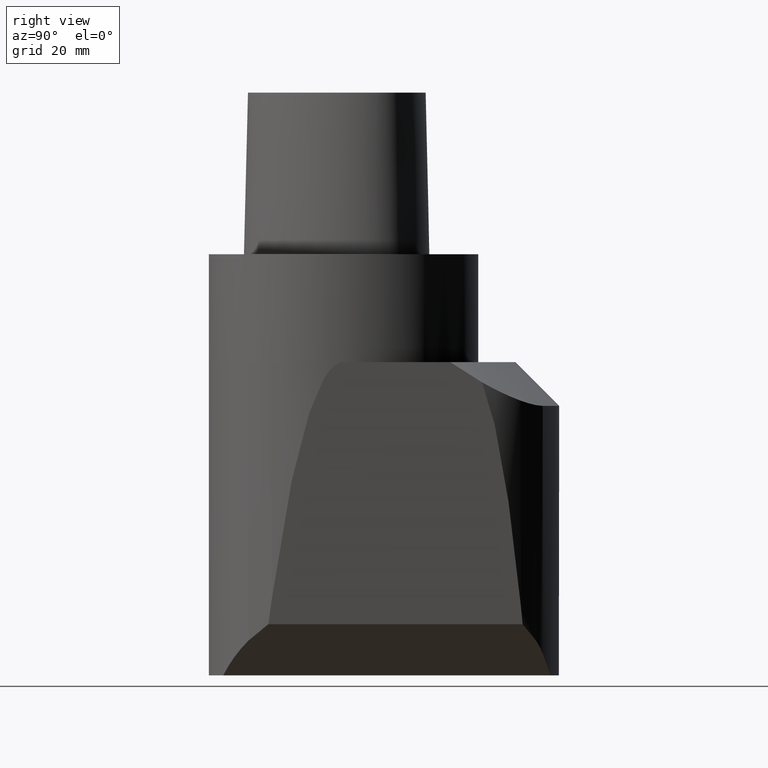
[diagram: clean part render]
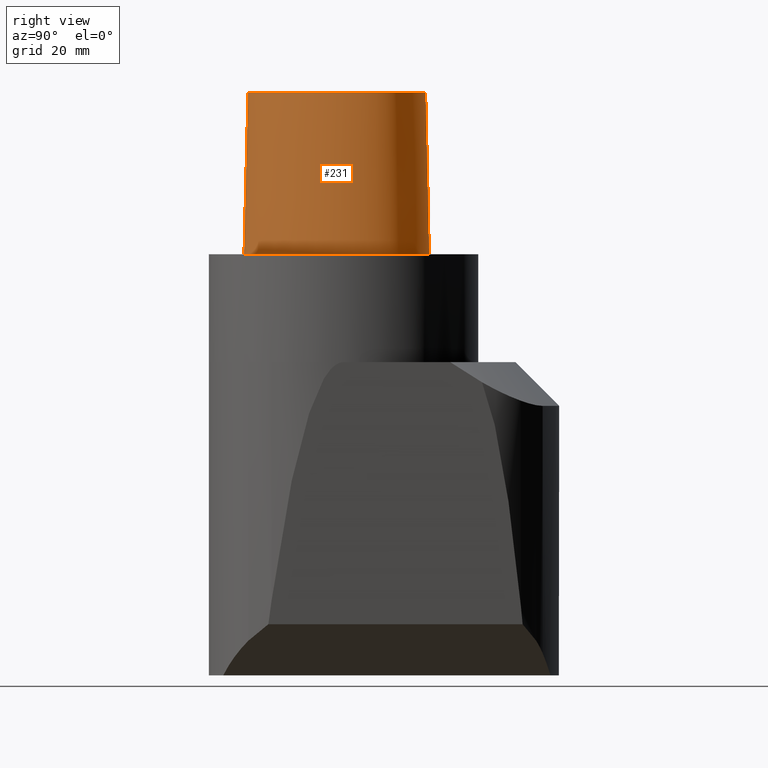
[diagram: same view with one face highlighted and labeled with its STEP entity id]
A machine part, right view. The second image highlights one B-rep face of the part: STEP entity #231.
In plain terms, the highlighted face is a freeform B-spline surface patch.
Its self-contained STEP definition (entity closure, byte-faithful):
#114=EDGE_CURVE('240[2]',#320,#320,#321,.T.);
#231=ADVANCED_FACE('240[2]',(#482),#483,.F.);
#262=EDGE_CURVE('240[2]',#518,#518,#519,.T.);
#270=EDGE_CURVE('240[2]',#518,#320,#530,.T.);
#320=VERTEX_POINT('',#580);
#321=B_SPLINE_CURVE_WITH_KNOTS('',3,(#581,#582,#583,#584,#585,#586,#587,#588,#589,#590,#591,#592,#593,#594,#595,#596,#597,#598,#599,#600,#601,#602,#603,#604,#605,#606,#607,#608,#609,#610,#611,#612,#613,#614,#615,#616,#617,#618,#619,#620,#621,#622,#623,#624,#625,#626,#627,#628,#629),.UNSPECIFIED.,.T.,.F.,(4,1,1,1,1,1,1,1,1,1,1,1,1,1,1,1,1,1,1,1,1,1,1,1,1,1,1,1,1,1,1,1,1,1,1,1,1,1,1,1,1,1,1,1,1,1,4),(0.0,0.023351915855444,0.046587266388789,0.069240176568065,0.091148511555983,0.1123498082883,0.132988344921176,0.153259056323784,0.173379606256739,0.193575406900779,0.21406817556902,0.235062876490599,0.256724107877353,0.279134072148509,0.302211911987387,0.325585720772129,0.348897942793447,0.372235827811492,0.395117449062017,0.417273776916591,0.438690480917031,0.459517607941485,0.479887726529216,0.499920279645309,0.520109124362118,0.540479544703226,0.561306546843113,0.582722343807168,0.604879209617679,0.627760890760907,0.651098683894914,0.674411064884055,0.697926557694984,0.721709534344695,0.743275604228345,0.764936939065916,0.785931598379216,0.806424124397203,0.826619873462382,0.846740294796301,0.867010839616641,0.887649545430403,0.908851158162203,0.930759261827623,0.953412277508376,0.976648149620789,1.0),.UNSPECIFIED.);
#482=FACE_OUTER_BOUND('',#1060,.T.);
#483=B_SPLINE_SURFACE_WITH_KNOTS('',3,3,((#1061,#1062,#1063,#1064),(#1065,#1066,#1067,#1068),(#1069,#1070,#1071,#1072),(#1073,#1074,#1075,#1076),(#1077,#1078,#1079,#1080),(#1081,#1082,#1083,#1084),(#1085,#1086,#1087,#1088),(#1089,#1090,#1091,#1092),(#1093,#1094,#1095,#1096),(#1097,#1098,#1099,#1100),(#1101,#1102,#1103,#1104),(#1105,#1106,#1107,#1108),(#1109,#1110,#1111,#1112),(#1113,#1114,#1115,#1116),(#1117,#1118,#1119,#1120),(#1121,#1122,#1123,#1124),(#1125,#1126,#1127,#1128),(#1129,#1130,#1131,#1132),(#1133,#1134,#1135,#1136),(#1137,#1138,#1139,#1140),(#1141,#1142,#1143,#1144),(#1145,#1146,#1147,#1148),(#1149,#1150,#1151,#1152),(#1153,#1154,#1155,#1156),(#1157,#1158,#1159,#1160),(#1161,#1162,#1163,#1164),(#1165,#1166,#1167,#1168),(#1169,#1170,#1171,#1172),(#1173,#1174,#1175,#1176),(#1177,#1178,#1179,#1180),(#1181,#1182,#1183,#1184),(#1185,#1186,#1187,#1188),(#1189,#1190,#1191,#1192),(#1193,#1194,#1195,#1196),(#1197,#1198,#1199,#1200),(#1201,#1202,#1203,#1204),(#1205,#1206,#1207,#1208),(#1209,#1210,#1211,#1212),(#1213,#1214,#1215,#1216),(#1217,#1218,#1219,#1220),(#1221,#1222,#1223,#1224),(#1225,#1226,#1227,#1228),(#1229,#1230,#1231,#1232),(#1233,#1234,#1235,#1236),(#1237,#1238,#1239,#1240),(#1241,#1242,#1243,#1244),(#1245,#1246,#1247,#1248),(#1249,#1250,#1251,#1252),(#1253,#1254,#1255,#1256),(#1257,#1258,#1259,#1260),(#1261,#1262,#1263,#1264),(#1265,#1266,#1267,#1268),(#1269,#1270,#1271,#1272),(#1273,#1274,#1275,#1276),(#1277,#1278,#1279,#1280),(#1281,#1282,#1283,#1284),(#1285,#1286,#1287,#1288),(#1289,#1290,#1291,#1292),(#1293,#1294,#1295,#1296),(#1297,#1298,#1299,#1300),(#1301,#1302,#1303,#1304),(#1305,#1306,#1307,#1308),(#1309,#1310,#1311,#1312),(#1313,#1314,#1315,#1316),(#1317,#1318,#1319,#1320),(#1321,#1322,#1323,#1324),(#1325,#1326,#1327,#1328),(#1329,#1330,#1331,#1332),(#1333,#1334,#1335,#1336),(#1337,#1338,#1339,#1340),(#1341,#1342,#1343,#1344),(#1345,#1346,#1347,#1348),(#1349,#1350,#1351,#1352),(#1353,#1354,#1355,#1356),(#1357,#1358,#1359,#1360),(#1361,#1362,#1363,#1364),(#1365,#1366,#1367,#1368),(#1369,#1370,#1371,#1372),(#1373,#1374,#1375,#1376),(#1377,#1378,#1379,#1380),(#1381,#1382,#1383,#1384),(#1385,#1386,#1387,#1388),(#1389,#1390,#1391,#1392),(#1393,#1394,#1395,#1396),(#1397,#1398,#1399,#1400),(#1401,#1402,#1403,#1404),(#1405,#1406,#1407,#1408),(#1409,#1410,#1411,#1412),(#1413,#1414,#1415,#1416),(#1417,#1418,#1419,#1420),(#1421,#1422,#1423,#1424),(#1425,#1426,#1427,#1428),(#1429,#1430,#1431,#1432),(#1433,#1434,#1435,#1436),(#1437,#1438,#1439,#1440),(#1441,#1442,#1443,#1444)),.UNSPECIFIED.,.T.,.F.,.F.,(4,2,2,2,2,2,2,2,2,2,2,2,2,2,2,2,2,2,2,2,2,2,2,2,2,2,2,2,2,2,2,2,2,2,2,2,2,2,2,2,2,2,2,2,2,2,2,4),(4,4),(0.0,0.023266238907101,0.04642321916497,0.069037428304488,0.090947532765319,0.112181511979892,0.132874081906891,0.153211623090307,0.173403899120381,0.193668982465133,0.214220857423359,0.235256169578881,0.256931182005521,0.279316100520023,0.302327812922285,0.325615908452607,0.348863915862354,0.37211588966546,0.394944167045003,0.417090524637617,0.438530318382332,0.459402579310312,0.479837360161492,0.499920279645309,0.520144802150986,0.540579089622822,0.561451608096301,0.58289068047617,0.605037731022285,0.627865851215146,0.651117829762372,0.674365843809947,0.697654002942623,0.720665464887439,0.743050887635834,0.764725116248188,0.7857605656535,0.806312370379442,0.826577482765943,0.846769695561797,0.867106984936976,0.887799904832214,0.90903349107026,0.930943318867528,0.953557807681498,0.97671479981417,0.999990517903696,1.0),(0.0,1.0),.UNSPECIFIED.);
#518=VERTEX_POINT('',#1510);
#519=B_SPLINE_CURVE_WITH_KNOTS('',3,(#1511,#1512,#1513,#1514,#1515,#1516,#1517,#1518,#1519,#1520,#1521,#1522,#1523,#1524,#1525,#1526,#1527,#1528,#1529,#1530,#1531,#1532,#1533,#1534,#1535,#1536,#1537,#1538,#1539,#1540,#1541,#1542,#1543,#1544,#1545,#1546,#1547,#1548,#1549,#1550,#1551,#1552,#1553,#1554,#1555,#1556,#1557,#1558,#1559,#1560,#1561,#1562,#1563,#1564,#1565,#1566,#1567,#1568,#1569,#1570,#1571,#1572,#1573,#1574,#1575,#1576,#1577,#1578,#1579,#1580,#1581,#1582,#1583,#1584,#1585,#1586,#1587,#1588,#1589,#1590,#1591,#1592,#1593,#1594,#1595,#1596,#1597,#1598,#1599,#1600,#1601,#1602,#1603,#1604,#1605,#1606),.UNSPECIFIED.,.T.,.F.,(4,2,2,2,2,2,2,2,2,2,2,2,2,2,2,2,2,2,2,2,2,2,2,2,2,2,2,2,2,2,2,2,2,2,2,2,2,2,2,2,2,2,2,2,2,2,2,4),(0.0,0.023266238907101,0.04642321916497,0.069037428304488,0.090947532765319,0.112181511979892,0.132874081906891,0.153211623090307,0.173403899120381,0.193668982465133,0.214220857423359,0.235256169578881,0.256931182005521,0.279316100520023,0.302327812922285,0.325615908452607,0.348863915862354,0.37211588966546,0.394944167045003,0.417090524637617,0.438530318382332,0.459402579310312,0.479837360161492,0.499920279645309,0.520144802150986,0.540579089622822,0.561451608096301,0.58289068047617,0.605037731022285,0.627865851215146,0.651117829762372,0.674365843809947,0.697654002942623,0.720665464887439,0.743050887635834,0.764725116248188,0.7857605656535,0.806312370379442,0.826577482765943,0.846769695561797,0.867106984936976,0.887799904832214,0.90903349107026,0.930943318867528,0.953557807681498,0.97671479981417,0.999990517903696,1.0),.UNSPECIFIED.);
#530=B_SPLINE_CURVE_WITH_KNOTS('',3,(#1620,#1621,#1622,#1623),.UNSPECIFIED.,.F.,.F.,(4,4),(0.0,1.0),.UNSPECIFIED.);
#580=CARTESIAN_POINT('',(-7.10564420632981E-015,-28.3748931426529,48.0));
#581=CARTESIAN_POINT('',(-7.10564420632981E-015,-28.3748931426529,48.0));
#582=CARTESIAN_POINT('',(-1.28829169155133,-28.399367375818,48.0));
#583=CARTESIAN_POINT('',(-3.85959979030208,-27.8581705845854,48.0));
#584=CARTESIAN_POINT('',(-7.35807000570215,-26.3039671919377,48.0));
#585=CARTESIAN_POINT('',(-10.5217929466077,-24.2824556046414,48.0));
#586=CARTESIAN_POINT('',(-13.3353105701073,-21.9813369841311,48.0));
#587=CARTESIAN_POINT('',(-15.8288917398101,-19.4930169713483,48.0));
#588=CARTESIAN_POINT('',(-18.0343115007326,-16.8644361083806,48.0));
#589=CARTESIAN_POINT('',(-19.9811550180694,-14.1122792003021,48.0));
#590=CARTESIAN_POINT('',(-21.692701668163,-11.2365503175383,48.0));
#591=CARTESIAN_POINT('',(-23.1773804507421,-8.22359439294644,48.0));
#592=CARTESIAN_POINT('',(-24.4321787442301,-5.05562842604979,48.0));
#593=CARTESIAN_POINT('',(-25.4341273198745,-1.713339190586,48.0));
#594=CARTESIAN_POINT('',(-26.1351255888409,1.81352567250138,48.0));
#595=CARTESIAN_POINT('',(-26.4570368424595,5.51539373422395,48.0));
#596=CARTESIAN_POINT('',(-26.2640433000089,9.31895598900786,48.0));
#597=CARTESIAN_POINT('',(-25.3673970515537,13.1174593495979,48.0));
#598=CARTESIAN_POINT('',(-23.1650593293068,16.3935410203794,48.0));
#599=CARTESIAN_POINT('',(-20.166041033419,18.8340538748085,48.0));
#600=CARTESIAN_POINT('',(-16.8920892201408,20.7294372455207,48.0));
#601=CARTESIAN_POINT('',(-13.5034428612199,22.1513818197868,48.0));
#602=CARTESIAN_POINT('',(-10.1051230998292,23.2053592739476,48.0));
#603=CARTESIAN_POINT('',(-6.71054806820375,23.8930871836209,48.0));
#604=CARTESIAN_POINT('',(-3.3440966300513,24.1872106166354,48.0));
#605=CARTESIAN_POINT('',(-0.00436859656821,24.4542290901542,48.0));
#606=CARTESIAN_POINT('',(3.33552046318777,24.1878714828122,48.0));
#607=CARTESIAN_POINT('',(6.7106009616545,23.8934850176939,48.0));
#608=CARTESIAN_POINT('',(10.1051559974891,23.2054948559444,48.0));
#609=CARTESIAN_POINT('',(13.5030031791571,22.150447002949,48.0));
#610=CARTESIAN_POINT('',(16.8923744626256,20.7297323497336,48.0));
#611=CARTESIAN_POINT('',(20.1652365808761,18.8339154382717,48.0));
#612=CARTESIAN_POINT('',(23.1681374732146,16.3939826803799,48.0));
#613=CARTESIAN_POINT('',(25.3601741943936,13.1089864874231,48.0));
#614=CARTESIAN_POINT('',(26.321105227627,9.27241325382505,48.0));
#615=CARTESIAN_POINT('',(26.4002391162146,5.46231423864458,48.0));
#616=CARTESIAN_POINT('',(26.1401991546312,1.76738885478755,48.0));
#617=CARTESIAN_POINT('',(25.4303705179883,-1.71324147084204,48.0));
#618=CARTESIAN_POINT('',(24.4327446070836,-5.05553218816391,48.0));
#619=CARTESIAN_POINT('',(23.1773594553093,-8.22370834660239,48.0));
#620=CARTESIAN_POINT('',(21.6921674973232,-11.2362273073487,48.0));
#621=CARTESIAN_POINT('',(19.9813729987982,-14.1124293711817,48.0));
#622=CARTESIAN_POINT('',(18.033984509433,-16.8641649241507,48.0));
#623=CARTESIAN_POINT('',(15.8290011220936,-19.4932243550181,48.0));
#624=CARTESIAN_POINT('',(13.3355411347684,-21.9812451369777,48.0));
#625=CARTESIAN_POINT('',(10.5217064911847,-24.2838945753293,48.0));
#626=CARTESIAN_POINT('',(7.35804941740046,-26.2980532430341,48.0));
#627=CARTESIAN_POINT('',(3.85974088767426,-27.8813814221605,48.0));
#628=CARTESIAN_POINT('',(1.28828807932148,-28.3504189781111,48.0));
#629=CARTESIAN_POINT('',(-6.51692220632981E-015,-28.3748931426529,48.0));
#1060=EDGE_LOOP('',(#1832,#1833,#1834,#1835));
#1061=CARTESIAN_POINT('',(-0.00164083163227662,-29.5748662817043,0.0));
#1062=CARTESIAN_POINT('',(-0.00109388775485357,-29.1748752353538,16.0));
#1063=CARTESIAN_POINT('',(-0.000546943877430524,-28.7748841890034,32.0));
#1064=CARTESIAN_POINT('',(-7.10564420632981E-015,-28.3748931426529,48.0));
#1065=CARTESIAN_POINT('',(-1.34367882227266,-29.5936106625075,0.0));
#1066=CARTESIAN_POINT('',(-1.32364088726301,-29.1954996353872,16.0));
#1067=CARTESIAN_POINT('',(-1.30360295225335,-28.7973886082668,32.0));
#1068=CARTESIAN_POINT('',(-1.2835650172437,-28.3992775811465,48.0));
#1069=CARTESIAN_POINT('',(-2.68740420004953,-29.3328889282446,0.0));
#1070=CARTESIAN_POINT('',(-2.64750445553282,-28.9319521286455,16.0));
#1071=CARTESIAN_POINT('',(-2.60760471101611,-28.5310153290466,32.0));
#1072=CARTESIAN_POINT('',(-2.5677049664994,-28.1300785294475,48.0));
#1073=CARTESIAN_POINT('',(-5.26074084631931,-28.5400905705423,0.0));
#1074=CARTESIAN_POINT('',(-5.18121381339101,-28.1402727371518,16.0));
#1075=CARTESIAN_POINT('',(-5.10168678046272,-27.7404549037614,32.0));
#1076=CARTESIAN_POINT('',(-5.02215974753443,-27.3406370703709,48.0));
#1077=CARTESIAN_POINT('',(-6.49085836398545,-28.0092939838118,0.0));
#1078=CARTESIAN_POINT('',(-6.39148945613548,-27.6135438881297,16.0));
#1079=CARTESIAN_POINT('',(-6.29212054828551,-27.2177937924477,32.0));
#1080=CARTESIAN_POINT('',(-6.19275164043553,-26.8220436967655,48.0));
#1081=CARTESIAN_POINT('',(-8.82856305941638,-26.7799538548108,0.0));
#1082=CARTESIAN_POINT('',(-8.69143543024714,-26.3953789566877,16.0));
#1083=CARTESIAN_POINT('',(-8.55430780107789,-26.0108040585645,32.0));
#1084=CARTESIAN_POINT('',(-8.41718017190864,-25.6262291604414,48.0));
#1085=CARTESIAN_POINT('',(-9.93834640062538,-26.0856337015913,0.0));
#1086=CARTESIAN_POINT('',(-9.78329057919871,-25.7081232854591,16.0));
#1087=CARTESIAN_POINT('',(-9.62823475777205,-25.3306128693271,32.0));
#1088=CARTESIAN_POINT('',(-9.47317893634538,-24.953102453195,48.0));
#1089=CARTESIAN_POINT('',(-12.0309823905868,-24.5926315357893,0.0));
#1090=CARTESIAN_POINT('',(-11.8421918576357,-24.2319203104979,16.0));
#1091=CARTESIAN_POINT('',(-11.6534013246846,-23.8712090852067,32.0));
#1092=CARTESIAN_POINT('',(-11.4646107917336,-23.5104978599152,48.0));
#1093=CARTESIAN_POINT('',(-13.0167112443809,-23.7978719690822,0.0));
#1094=CARTESIAN_POINT('',(-12.8120582068171,-23.4468353517023,16.0));
#1095=CARTESIAN_POINT('',(-12.6074051692533,-23.0957987343226,32.0));
#1096=CARTESIAN_POINT('',(-12.4027521316895,-22.7447621169426,48.0));
#1097=CARTESIAN_POINT('',(-14.8727265816832,-22.1381942733804,0.0));
#1098=CARTESIAN_POINT('',(-14.6383713737375,-21.808159912819,16.0));
#1099=CARTESIAN_POINT('',(-14.4040161657918,-21.4781255522577,32.0));
#1100=CARTESIAN_POINT('',(-14.1696609578462,-21.1480911916963,48.0));
#1101=CARTESIAN_POINT('',(-15.7456368168333,-21.2761980066665,0.0));
#1102=CARTESIAN_POINT('',(-15.4973991165055,-20.9574397902916,16.0));
#1103=CARTESIAN_POINT('',(-15.2491614161778,-20.6386815739169,32.0));
#1104=CARTESIAN_POINT('',(-15.0009237158501,-20.3199233575421,48.0));
#1105=CARTESIAN_POINT('',(-17.3879214183881,-19.499427365145,0.0));
#1106=CARTESIAN_POINT('',(-17.1137771976026,-19.204500665996,16.0));
#1107=CARTESIAN_POINT('',(-16.8396329768171,-18.9095739668469,32.0));
#1108=CARTESIAN_POINT('',(-16.5654887560317,-18.6146472676979,48.0));
#1109=CARTESIAN_POINT('',(-18.1593681806271,-18.5865590846551,0.0));
#1110=CARTESIAN_POINT('',(-17.8731624623415,-18.3041523513154,16.0));
#1111=CARTESIAN_POINT('',(-17.5869567440558,-18.0217456179756,32.0));
#1112=CARTESIAN_POINT('',(-17.3007510257701,-17.739338884636,48.0));
#1113=CARTESIAN_POINT('',(-19.6094862833069,-16.7150017171437,0.0));
#1114=CARTESIAN_POINT('',(-19.3009203341129,-16.458705455358,16.0));
#1115=CARTESIAN_POINT('',(-18.9923543849188,-16.2024091935725,32.0));
#1116=CARTESIAN_POINT('',(-18.6837884357248,-15.9461129317867,48.0));
#1117=CARTESIAN_POINT('',(-20.289522306802,-15.7573675155919,0.0));
#1118=CARTESIAN_POINT('',(-19.9706311197053,-15.5146407474198,16.0));
#1119=CARTESIAN_POINT('',(-19.6517399326086,-15.2719139792478,32.0));
#1120=CARTESIAN_POINT('',(-19.3328487455118,-15.0291872110756,48.0));
#1121=CARTESIAN_POINT('',(-21.5656702578572,-13.797506639011,0.0));
#1122=CARTESIAN_POINT('',(-21.2277269942578,-13.5828445459812,16.0));
#1123=CARTESIAN_POINT('',(-20.8897837306584,-13.3681824529514,32.0));
#1124=CARTESIAN_POINT('',(-20.551840467059,-13.1535203599216,48.0));
#1125=CARTESIAN_POINT('',(-22.1623469365906,-12.7956473319474,0.0));
#1126=CARTESIAN_POINT('',(-21.8156667575515,-12.5954737847242,16.0));
#1127=CARTESIAN_POINT('',(-21.4689865785123,-12.395300237501,32.0));
#1128=CARTESIAN_POINT('',(-21.1223063994731,-12.195126690278,48.0));
#1129=CARTESIAN_POINT('',(-23.2752180864568,-10.74347032584,0.0));
#1130=CARTESIAN_POINT('',(-22.9126797349918,-10.5732054400807,16.0));
#1131=CARTESIAN_POINT('',(-22.5501413835268,-10.4029405543216,32.0));
#1132=CARTESIAN_POINT('',(-22.1876030320618,-10.2326756685624,48.0));
#1133=CARTESIAN_POINT('',(-23.7911146053519,-9.69299092556668,0.0));
#1134=CARTESIAN_POINT('',(-23.4214608987418,-9.53814935338784,16.0));
#1135=CARTESIAN_POINT('',(-23.0518071921317,-9.38330778120911,32.0));
#1136=CARTESIAN_POINT('',(-22.6821534855217,-9.22846620903027,48.0));
#1137=CARTESIAN_POINT('',(-24.7420870094788,-7.53819816873289,0.0));
#1138=CARTESIAN_POINT('',(-24.3598707005685,-7.4151490430653,16.0));
#1139=CARTESIAN_POINT('',(-23.9776543916582,-7.29209991739771,32.0));
#1140=CARTESIAN_POINT('',(-23.595438082748,-7.16905079173011,48.0));
#1141=CARTESIAN_POINT('',(-25.1759157970854,-6.43333334291293,0.0));
#1142=CARTESIAN_POINT('',(-24.7882755665458,-6.32666326762097,16.0));
#1143=CARTESIAN_POINT('',(-24.4006353360062,-6.21999319232907,32.0));
#1144=CARTESIAN_POINT('',(-24.0129951054667,-6.11332311703706,48.0));
#1145=CARTESIAN_POINT('',(-25.9554404448504,-4.16361692512214,0.0));
#1146=CARTESIAN_POINT('',(-25.5588495567967,-4.09066455075697,16.0));
#1147=CARTESIAN_POINT('',(-25.162258668743,-4.01771217639191,32.0));
#1148=CARTESIAN_POINT('',(-24.7656677806893,-3.94475980202674,48.0));
#1149=CARTESIAN_POINT('',(-26.2988231270793,-2.99796562277027,0.0));
#1150=CARTESIAN_POINT('',(-25.8987494668059,-2.94236646726182,16.0));
#1151=CARTESIAN_POINT('',(-25.4986758065324,-2.88676731175343,32.0));
#1152=CARTESIAN_POINT('',(-25.0986021462589,-2.83116815624504,48.0));
#1153=CARTESIAN_POINT('',(-26.8823734669132,-0.603263018451628,0.0));
#1154=CARTESIAN_POINT('',(-26.4773269868267,-0.583269957824712,16.0));
#1155=CARTESIAN_POINT('',(-26.0722805067402,-0.563276897197852,32.0));
#1156=CARTESIAN_POINT('',(-25.6672340266537,-0.543283836570993,48.0));
#1157=CARTESIAN_POINT('',(-27.1190847093475,0.626638314508966,0.0));
#1158=CARTESIAN_POINT('',(-26.7126061354873,0.628366159501013,16.0));
#1159=CARTESIAN_POINT('',(-26.306127561627,0.630094004493003,32.0));
#1160=CARTESIAN_POINT('',(-25.8996489877668,0.63182184948505,48.0));
#1161=CARTESIAN_POINT('',(-27.4609002561416,3.14696645819561,0.0));
#1162=CARTESIAN_POINT('',(-27.0547212638528,3.1114687570315,16.0));
#1163=CARTESIAN_POINT('',(-26.6485422715639,3.07597105586734,32.0));
#1164=CARTESIAN_POINT('',(-26.2423632792751,3.04047335470318,48.0));
#1165=CARTESIAN_POINT('',(-27.5614402101816,4.43805628657725,0.0));
#1166=CARTESIAN_POINT('',(-27.1570763257013,4.38358087482692,16.0));
#1167=CARTESIAN_POINT('',(-26.7527124412211,4.32910546307647,32.0));
#1168=CARTESIAN_POINT('',(-26.3483485567409,4.27463005132614,48.0));
#1169=CARTESIAN_POINT('',(-27.5863066124947,7.05787796805237,0.0));
#1170=CARTESIAN_POINT('',(-27.1886435264071,6.96515495190914,16.0));
#1171=CARTESIAN_POINT('',(-26.7909804403194,6.87243193576586,32.0));
#1172=CARTESIAN_POINT('',(-26.3933173542318,6.77970891962264,48.0));
#1173=CARTESIAN_POINT('',(-27.5056201279308,8.38665155837629,0.0));
#1174=CARTESIAN_POINT('',(-27.1129044510275,8.27466583473029,16.0));
#1175=CARTESIAN_POINT('',(-26.7201887741241,8.16268011108423,32.0));
#1176=CARTESIAN_POINT('',(-26.3274730972208,8.05069438743828,48.0));
#1177=CARTESIAN_POINT('',(-27.0954571151674,11.0352567744664,0.0));
#1178=CARTESIAN_POINT('',(-26.7183753741604,10.8867620797351,16.0));
#1179=CARTESIAN_POINT('',(-26.3412936331534,10.7382673850038,32.0));
#1180=CARTESIAN_POINT('',(-25.9642118921463,10.5897726902726,48.0));
#1181=CARTESIAN_POINT('',(-26.7630041230867,12.3547893226748,0.0));
#1182=CARTESIAN_POINT('',(-26.3965598522753,12.1889620363458,16.0));
#1183=CARTESIAN_POINT('',(-26.0301155814639,12.0231347500168,32.0));
#1184=CARTESIAN_POINT('',(-25.6636713106525,11.8573074636877,48.0));
#1185=CARTESIAN_POINT('',(-25.6724521861925,14.8124702450063,0.0));
#1186=CARTESIAN_POINT('',(-25.3253408215574,14.6123501239471,16.0));
#1187=CARTESIAN_POINT('',(-24.9782294569222,14.4122300028878,32.0));
#1188=CARTESIAN_POINT('',(-24.631118092287,14.2121098818286,48.0));
#1189=CARTESIAN_POINT('',(-24.9150869333233,15.9509269437304,0.0));
#1190=CARTESIAN_POINT('',(-24.5767509947569,15.7338600538486,16.0));
#1191=CARTESIAN_POINT('',(-24.2384150561905,15.5167931639667,32.0));
#1192=CARTESIAN_POINT('',(-23.9000791176241,15.2997262740848,48.0));
#1193=CARTESIAN_POINT('',(-23.1210312548435,17.9569470053759,0.0));
#1194=CARTESIAN_POINT('',(-22.8030108627851,17.7061249979891,16.0));
#1195=CARTESIAN_POINT('',(-22.4849904707268,17.4553029906023,32.0));
#1196=CARTESIAN_POINT('',(-22.1669700786685,17.2044809832155,48.0));
#1197=CARTESIAN_POINT('',(-22.0842931950003,18.8244641174544,0.0));
#1198=CARTESIAN_POINT('',(-21.7778135373241,18.5567873324772,16.0));
#1199=CARTESIAN_POINT('',(-21.4713338796478,18.2891105474999,32.0));
#1200=CARTESIAN_POINT('',(-21.1648542219715,18.0214337625227,48.0));
#1201=CARTESIAN_POINT('',(-19.908909483221,20.3616348354058,0.0));
#1202=CARTESIAN_POINT('',(-19.628591242806,20.0640526797034,16.0));
#1203=CARTESIAN_POINT('',(-19.348273002391,19.766470524001,32.0));
#1204=CARTESIAN_POINT('',(-19.0679547619761,19.4688883682986,48.0));
#1205=CARTESIAN_POINT('',(-18.7724650249979,21.0346058511353,0.0));
#1206=CARTESIAN_POINT('',(-18.5068075321553,20.7239723375169,16.0));
#1207=CARTESIAN_POINT('',(-18.2411500393127,20.4133388238985,32.0));
#1208=CARTESIAN_POINT('',(-17.9754925464701,20.1027053102802,48.0));
#1209=CARTESIAN_POINT('',(-16.4567596515209,22.2069945116741,0.0));
#1210=CARTESIAN_POINT('',(-16.2218541830065,21.8737033613927,16.0));
#1211=CARTESIAN_POINT('',(-15.9869487144921,21.5404122111112,32.0));
#1212=CARTESIAN_POINT('',(-15.7520432459778,21.2071210608299,48.0));
#1213=CARTESIAN_POINT('',(-15.2797918086139,22.7109959882008,0.0));
#1214=CARTESIAN_POINT('',(-15.0609268076114,22.3679990903467,16.0));
#1215=CARTESIAN_POINT('',(-14.8420618066089,22.0250021924924,32.0));
#1216=CARTESIAN_POINT('',(-14.6231968056063,21.6820052946383,48.0));
#1217=CARTESIAN_POINT('',(-12.9207332535993,23.5857253409895,0.0));
#1218=CARTESIAN_POINT('',(-12.7344650558058,23.2254730372688,16.0));
#1219=CARTESIAN_POINT('',(-12.5481968580123,22.865220733548,32.0));
#1220=CARTESIAN_POINT('',(-12.3619286602188,22.5049684298273,48.0));
#1221=CARTESIAN_POINT('',(-11.740003999522,23.9601922020954,0.0));
#1222=CARTESIAN_POINT('',(-11.5702860772561,23.5923778375068,16.0));
#1223=CARTESIAN_POINT('',(-11.4005681549901,23.2245634729182,32.0));
#1224=CARTESIAN_POINT('',(-11.2308502327242,22.8567491083297,48.0));
#1225=CARTESIAN_POINT('',(-9.37648722149752,24.5736332451035,0.0));
#1226=CARTESIAN_POINT('',(-9.24017438913907,24.1942544876504,16.0));
#1227=CARTESIAN_POINT('',(-9.10386155678063,23.8148757301973,32.0));
#1228=CARTESIAN_POINT('',(-8.96754872442218,23.4354969727443,48.0));
#1229=CARTESIAN_POINT('',(-8.19458153545295,24.8159316598014,0.0));
#1230=CARTESIAN_POINT('',(-8.07509348120514,24.4324733305797,16.0));
#1231=CARTESIAN_POINT('',(-7.95560542695733,24.0490150013579,32.0));
#1232=CARTESIAN_POINT('',(-7.83611737270952,23.6655566721363,48.0));
#1233=CARTESIAN_POINT('',(-5.83850844197054,25.1759510165757,0.0));
#1234=CARTESIAN_POINT('',(-5.75262513537188,24.7811764769356,16.0));
#1235=CARTESIAN_POINT('',(-5.66674182877322,24.3864019372955,32.0));
#1236=CARTESIAN_POINT('',(-5.58085852217456,23.9916273976555,48.0));
#1237=CARTESIAN_POINT('',(-4.66469807187812,25.2961766417791,0.0));
#1238=CARTESIAN_POINT('',(-4.59558843273108,24.8941072061456,16.0));
#1239=CARTESIAN_POINT('',(-4.52647879358404,24.492037770512,32.0));
#1240=CARTESIAN_POINT('',(-4.457369154437,24.0899683348784,48.0));
#1241=CARTESIAN_POINT('',(-2.3312699890678,25.4544662638825,0.0));
#1242=CARTESIAN_POINT('',(-2.29647121024837,25.0618226209864,16.0));
#1243=CARTESIAN_POINT('',(-2.26167243142894,24.6691789780903,32.0));
#1244=CARTESIAN_POINT('',(-2.22687365260951,24.2765353351941,48.0));
#1245=CARTESIAN_POINT('',(-1.17175591409117,25.4939093361241,0.0));
#1246=CARTESIAN_POINT('',(-1.15448009866525,25.1176923885799,16.0));
#1247=CARTESIAN_POINT('',(-1.13720428323932,24.7414754410357,32.0));
#1248=CARTESIAN_POINT('',(-1.1199284678134,24.3652584934916,48.0));
#1249=CARTESIAN_POINT('',(1.15545266416126,25.494540252471,0.0));
#1250=CARTESIAN_POINT('',(1.13757337077305,25.1184162091964,16.0));
#1251=CARTESIAN_POINT('',(1.11969407738485,24.7422921659216,32.0));
#1252=CARTESIAN_POINT('',(1.10181478399665,24.366168122647,48.0));
#1253=CARTESIAN_POINT('',(2.32314720120702,25.4551743644366,0.0));
#1254=CARTESIAN_POINT('',(2.28763587852751,25.0624845721615,16.0));
#1255=CARTESIAN_POINT('',(2.252124555848,24.6697947798863,32.0));
#1256=CARTESIAN_POINT('',(2.21661323316848,24.2771049876112,48.0));
#1257=CARTESIAN_POINT('',(4.66463729586072,25.2960231489021,0.0));
#1258=CARTESIAN_POINT('',(4.59473395742708,24.89409982816,16.0));
#1259=CARTESIAN_POINT('',(4.52483061899343,24.4921765074179,32.0));
#1260=CARTESIAN_POINT('',(4.45492728055979,24.0902531866759,48.0));
#1261=CARTESIAN_POINT('',(5.83837051795068,25.1754079607774,0.0));
#1262=CARTESIAN_POINT('',(5.75171531671322,24.7809806255071,16.0));
#1263=CARTESIAN_POINT('',(5.66506011547576,24.3865532902367,32.0));
#1264=CARTESIAN_POINT('',(5.5784049142383,23.9921259549665,48.0));
#1265=CARTESIAN_POINT('',(8.19448404193754,24.8154739309331,0.0));
#1266=CARTESIAN_POINT('',(8.07421934126736,24.4324236535682,16.0));
#1267=CARTESIAN_POINT('',(7.95395464059718,24.0493733762032,32.0));
#1268=CARTESIAN_POINT('',(7.833689939927,23.6663230988382,48.0));
#1269=CARTESIAN_POINT('',(9.37650995847748,24.573664860466,0.0));
#1270=CARTESIAN_POINT('',(9.23939278056019,24.1945289885103,16.0));
#1271=CARTESIAN_POINT('',(9.1022756026429,23.8153931165546,32.0));
#1272=CARTESIAN_POINT('',(8.96515842472561,23.4362572445988,48.0));
#1273=CARTESIAN_POINT('',(11.7399573199399,23.9602471092435,0.0));
#1274=CARTESIAN_POINT('',(11.5694176589878,23.5925750133392,16.0));
#1275=CARTESIAN_POINT('',(11.3988779980358,23.2249029174349,32.0));
#1276=CARTESIAN_POINT('',(11.2283383370838,22.8572308215306,48.0));
#1277=CARTESIAN_POINT('',(12.9204914744584,23.585293366417,0.0));
#1278=CARTESIAN_POINT('',(12.7334126019956,23.2252563620381,16.0));
#1279=CARTESIAN_POINT('',(12.5463337295329,22.865219357659,32.0));
#1280=CARTESIAN_POINT('',(12.3592548570701,22.5051823532801,48.0));
#1281=CARTESIAN_POINT('',(15.2795848008339,22.7105342386106,0.0));
#1282=CARTESIAN_POINT('',(15.0599456207753,22.3678257332467,16.0));
#1283=CARTESIAN_POINT('',(14.8403064407168,22.0251172278827,32.0));
#1284=CARTESIAN_POINT('',(14.6206672606582,21.6824087225189,48.0));
#1285=CARTESIAN_POINT('',(16.4567913745813,22.2070147920283,0.0));
#1286=CARTESIAN_POINT('',(16.2211379891366,21.8740106312453,16.0));
#1287=CARTESIAN_POINT('',(15.985484603692,21.5410064704623,32.0));
#1288=CARTESIAN_POINT('',(15.7498312182473,21.2080023096793,48.0));
#1289=CARTESIAN_POINT('',(18.7726283764867,21.034903794727,0.0));
#1290=CARTESIAN_POINT('',(18.5061802246464,20.7246144010509,16.0));
#1291=CARTESIAN_POINT('',(18.239732072806,20.4143250073748,32.0));
#1292=CARTESIAN_POINT('',(17.9732839209656,20.1040356136988,48.0));
#1293=CARTESIAN_POINT('',(19.9089592260428,20.3617120962174,0.0));
#1294=CARTESIAN_POINT('',(19.6277825012094,20.0645362290446,16.0));
#1295=CARTESIAN_POINT('',(19.346605776376,19.7673603618716,32.0));
#1296=CARTESIAN_POINT('',(19.0654290515425,19.4701844946989,48.0));
#1297=CARTESIAN_POINT('',(22.0842485191724,18.8243782496281,0.0));
#1298=CARTESIAN_POINT('',(21.7772896699694,18.5572545504423,16.0));
#1299=CARTESIAN_POINT('',(21.4703308207664,18.2901308512564,32.0));
#1300=CARTESIAN_POINT('',(21.1633719715633,18.0230071520706,48.0));
#1301=CARTESIAN_POINT('',(23.12100726512,17.9569227334155,0.0));
#1302=CARTESIAN_POINT('',(22.8029696368782,17.7067453188338,16.0));
#1303=CARTESIAN_POINT('',(22.4849320086363,17.4565679042519,32.0));
#1304=CARTESIAN_POINT('',(22.1668943803944,17.2063904896702,48.0));
#1305=CARTESIAN_POINT('',(24.9151158158093,15.9509545348034,0.0));
#1306=CARTESIAN_POINT('',(24.5756586677008,15.7344431299893,16.0));
#1307=CARTESIAN_POINT('',(24.2362015195923,15.5179317251751,32.0));
#1308=CARTESIAN_POINT('',(23.8967443714838,15.3014203203609,48.0));
#1309=CARTESIAN_POINT('',(25.6725132300842,14.8124880933032,0.0));
#1310=CARTESIAN_POINT('',(25.3227202771017,14.6127234549365,16.0));
#1311=CARTESIAN_POINT('',(24.9729273241191,14.4129588165699,32.0));
#1312=CARTESIAN_POINT('',(24.6231343711365,14.2131941782033,48.0));
#1313=CARTESIAN_POINT('',(26.762962807837,12.3547780213407,0.0));
#1314=CARTESIAN_POINT('',(26.398663500033,12.1901922596334,16.0));
#1315=CARTESIAN_POINT('',(26.0343641922291,12.025606497926,32.0));
#1316=CARTESIAN_POINT('',(25.6700648844252,11.8610207362187,48.0));
#1317=CARTESIAN_POINT('',(27.0952799458876,11.0352256163986,0.0));
#1318=CARTESIAN_POINT('',(26.7267395269462,10.8890582561754,16.0));
#1319=CARTESIAN_POINT('',(26.3581991080048,10.7428908959521,32.0));
#1320=CARTESIAN_POINT('',(25.9896586890633,10.5967235357289,48.0));
#1321=CARTESIAN_POINT('',(27.5055512569286,8.3866145607775,0.0));
#1322=CARTESIAN_POINT('',(27.1169004134887,8.27733014584271,16.0));
#1323=CARTESIAN_POINT('',(26.7282495700488,8.16804573090786,32.0));
#1324=CARTESIAN_POINT('',(26.3395987266089,8.05876131597313,48.0));
#1325=CARTESIAN_POINT('',(27.5864807188881,7.0578551379399,0.0));
#1326=CARTESIAN_POINT('',(27.1820241656145,6.9672611691185,16.0));
#1327=CARTESIAN_POINT('',(26.777567612341,6.87666720029711,32.0));
#1328=CARTESIAN_POINT('',(26.3731110590674,6.78607323147571,48.0));
#1329=CARTESIAN_POINT('',(27.561392778196,4.43806075995121,0.0));
#1330=CARTESIAN_POINT('',(27.1463822084827,4.38487769126067,16.0));
#1331=CARTESIAN_POINT('',(26.7313716387694,4.33169462257007,32.0));
#1332=CARTESIAN_POINT('',(26.3163610690561,4.27851155387958,48.0));
#1333=CARTESIAN_POINT('',(27.4604014662893,3.14698296007577,0.0));
#1334=CARTESIAN_POINT('',(27.0515030324356,3.1125408268415,16.0));
#1335=CARTESIAN_POINT('',(26.642604598582,3.07809869360716,32.0));
#1336=CARTESIAN_POINT('',(26.2337061647284,3.04365656037288,48.0));
#1337=CARTESIAN_POINT('',(27.118611303309,0.626629008731129,0.0));
#1338=CARTESIAN_POINT('',(26.7151928129601,0.629259001527828,16.0));
#1339=CARTESIAN_POINT('',(26.3117743226112,0.631888994324413,32.0));
#1340=CARTESIAN_POINT('',(25.9083558322623,0.634518987121112,48.0));
#1341=CARTESIAN_POINT('',(26.8823561320654,-0.603307445442226,0.0));
#1342=CARTESIAN_POINT('',(26.4782735139235,-0.582338301865434,16.0));
#1343=CARTESIAN_POINT('',(26.0741908957816,-0.561369158288642,32.0));
#1344=CARTESIAN_POINT('',(25.6701082776397,-0.54040001471185,48.0));
#1345=CARTESIAN_POINT('',(26.2990081949749,-2.99798519998626,0.0));
#1346=CARTESIAN_POINT('',(25.8983879486983,-2.94136859415721,16.0));
#1347=CARTESIAN_POINT('',(25.4977677024218,-2.88475198832816,32.0));
#1348=CARTESIAN_POINT('',(25.0971474561453,-2.82813538249911,48.0));
#1349=CARTESIAN_POINT('',(25.9553872246104,-4.16357961185389,0.0));
#1350=CARTESIAN_POINT('',(25.5588297122605,-4.08964078527981,16.0));
#1351=CARTESIAN_POINT('',(25.1622721999106,-4.01570195870585,32.0));
#1352=CARTESIAN_POINT('',(24.7657146875607,-3.94176313213177,48.0));
#1353=CARTESIAN_POINT('',(25.1758761789259,-6.43333881304994,0.0));
#1354=CARTESIAN_POINT('',(24.7887287831653,-6.32571500476018,16.0));
#1355=CARTESIAN_POINT('',(24.4015813874046,-6.21809119647048,32.0));
#1356=CARTESIAN_POINT('',(24.014433991644,-6.11046738818078,48.0));
#1357=CARTESIAN_POINT('',(24.7422891917365,-7.53829982079645,0.0));
#1358=CARTESIAN_POINT('',(24.3604472200928,-7.41429948784327,16.0));
#1359=CARTESIAN_POINT('',(23.9786052484491,-7.29029915489008,32.0));
#1360=CARTESIAN_POINT('',(23.5967632768054,-7.16629882193683,48.0));
#1361=CARTESIAN_POINT('',(23.7911396305002,-9.69297644170626,0.0));
#1362=CARTESIAN_POINT('',(23.4218452335822,-9.53722254240603,16.0));
#1363=CARTESIAN_POINT('',(23.0525508366642,-9.38146864310585,32.0));
#1364=CARTESIAN_POINT('',(22.6832564397462,-9.22571474380555,48.0));
#1365=CARTESIAN_POINT('',(23.2748328680553,-10.7432476936092,0.0));
#1366=CARTESIAN_POINT('',(22.9127556972629,-10.5721057092551,16.0));
#1367=CARTESIAN_POINT('',(22.5506785264706,-10.400963724901,32.0));
#1368=CARTESIAN_POINT('',(22.1886013556782,-10.2298217405469,48.0));
#1369=CARTESIAN_POINT('',(22.1620073500161,-12.7954883285933,0.0));
#1370=CARTESIAN_POINT('',(21.815844057366,-12.5944492405716,16.0));
#1371=CARTESIAN_POINT('',(21.4696807647159,-12.39341015255,32.0));
#1372=CARTESIAN_POINT('',(21.1235174720658,-12.1923710645282,48.0));
#1373=CARTESIAN_POINT('',(21.5657838219206,-13.797617876684,0.0));
#1374=CARTESIAN_POINT('',(21.2283122616896,-13.5820671510252,16.0));
#1375=CARTESIAN_POINT('',(20.8908407014586,-13.3665164253665,32.0));
#1376=CARTESIAN_POINT('',(20.5533691412275,-13.1509656997077,48.0));
#1377=CARTESIAN_POINT('',(20.289692338909,-15.7574429608729,0.0));
#1378=CARTESIAN_POINT('',(19.9713233200916,-15.5138718669657,16.0));
#1379=CARTESIAN_POINT('',(19.6529543012743,-15.2703007730586,32.0));
#1380=CARTESIAN_POINT('',(19.3345852824569,-15.0267296791515,48.0));
#1381=CARTESIAN_POINT('',(19.6092541949823,-16.7147675174567,0.0));
#1382=CARTESIAN_POINT('',(19.301307772478,-16.4576955223117,16.0));
#1383=CARTESIAN_POINT('',(18.9933613499738,-16.2006235271668,32.0));
#1384=CARTESIAN_POINT('',(18.6854149274695,-15.9435515320218,48.0));
#1385=CARTESIAN_POINT('',(18.1590928335012,-18.5863673368761,0.0));
#1386=CARTESIAN_POINT('',(17.8735516820659,-18.3032106053919,16.0));
#1387=CARTESIAN_POINT('',(17.5880105306306,-18.0200538739077,32.0));
#1388=CARTESIAN_POINT('',(17.3024693791953,-17.7368971424235,48.0));
#1389=CARTESIAN_POINT('',(17.3880163872248,-19.4995970803095,0.0));
#1390=CARTESIAN_POINT('',(17.1144808747432,-19.203874850947,16.0));
#1391=CARTESIAN_POINT('',(16.8409453622615,-18.9081526215846,32.0));
#1392=CARTESIAN_POINT('',(16.5674098497798,-18.6124303922222,48.0));
#1393=CARTESIAN_POINT('',(15.7458756068693,-21.2763690689372,0.0));
#1394=CARTESIAN_POINT('',(15.4983072339672,-20.9568721930512,16.0));
#1395=CARTESIAN_POINT('',(15.2507388610651,-20.6373753171653,32.0));
#1396=CARTESIAN_POINT('',(15.003170488163,-20.3178784412793,48.0));
#1397=CARTESIAN_POINT('',(14.8727251768577,-22.1379896342994,0.0));
#1398=CARTESIAN_POINT('',(14.6391608882147,-21.8073250769185,16.0));
#1399=CARTESIAN_POINT('',(14.4055965995716,-21.4766605195376,32.0));
#1400=CARTESIAN_POINT('',(14.1720323109285,-21.1459959621566,48.0));
#1401=CARTESIAN_POINT('',(13.0164986146837,-23.7977451564491,0.0));
#1402=CARTESIAN_POINT('',(12.8127423338318,-23.4462259743379,16.0));
#1403=CARTESIAN_POINT('',(12.60898605298,-23.0947067922266,32.0));
#1404=CARTESIAN_POINT('',(12.4052297721281,-22.7431876101155,48.0));
#1405=CARTESIAN_POINT('',(12.0308072155323,-24.5929843178023,0.0));
#1406=CARTESIAN_POINT('',(11.8428940651753,-24.2318220185598,16.0));
#1407=CARTESIAN_POINT('',(11.6549809148182,-23.8706597193175,32.0));
#1408=CARTESIAN_POINT('',(11.4670677644611,-23.5094974200749,48.0));
#1409=CARTESIAN_POINT('',(9.93827470804141,-26.0847683712151,0.0));
#1410=CARTESIAN_POINT('',(9.78408463139422,-25.7066442659563,16.0));
#1411=CARTESIAN_POINT('',(9.62989455474702,-25.3285201606976,32.0));
#1412=CARTESIAN_POINT('',(9.47570447809983,-24.9503960554388,48.0));
#1413=CARTESIAN_POINT('',(8.82855678381542,-26.7773164869684,0.0));
#1414=CARTESIAN_POINT('',(8.69230228536615,-26.3919547294402,16.0));
#1415=CARTESIAN_POINT('',(8.55604778691688,-26.006592971912,32.0));
#1416=CARTESIAN_POINT('',(8.41979328846762,-25.6212312143837,48.0));
#1417=CARTESIAN_POINT('',(6.49089493491194,-28.0120447965454,0.0));
#1418=CARTESIAN_POINT('',(6.39245845709313,-27.6161837874229,16.0));
#1419=CARTESIAN_POINT('',(6.29402197927432,-27.2203227783003,32.0));
#1420=CARTESIAN_POINT('',(6.19558550145551,-26.8244617691778,48.0));
#1421=CARTESIAN_POINT('',(5.26075348594719,-28.5502192368694,0.0));
#1422=CARTESIAN_POINT('',(5.18221455016645,-28.1510913348169,16.0));
#1423=CARTESIAN_POINT('',(5.10367561438572,-27.7519634327645,32.0));
#1424=CARTESIAN_POINT('',(5.02513667860498,-27.3528355307118,48.0));
#1425=CARTESIAN_POINT('',(2.68687274960978,-29.3229139791992,0.0));
#1426=CARTESIAN_POINT('',(2.64803480234481,-28.9207762382605,16.0));
#1427=CARTESIAN_POINT('',(2.60919685507985,-28.5186384973218,32.0));
#1428=CARTESIAN_POINT('',(2.57035890781488,-28.1165007563832,48.0));
#1429=CARTESIAN_POINT('',(1.34258338152267,-29.5558632991381,0.0));
#1430=CARTESIAN_POINT('',(1.32360819422078,-29.1540083216529,16.0));
#1431=CARTESIAN_POINT('',(1.3046330069189,-28.7521533441677,32.0));
#1432=CARTESIAN_POINT('',(1.28565781961701,-28.3502983666825,48.0));
#1433=CARTESIAN_POINT('',(-0.000546943594638622,-29.5748509568372,0.0));
#1434=CARTESIAN_POINT('',(-1.58865960915729E-005,-29.1748583819893,16.0));
#1435=CARTESIAN_POINT('',(0.000515170402455476,-28.7748658071413,32.0));
#1436=CARTESIAN_POINT('',(0.00104622740100153,-28.3748732322933,48.0));
#1437=CARTESIAN_POINT('',(-0.00109388747332262,-29.5748586424797,0.0));
#1438=CARTESIAN_POINT('',(-0.000554887099611573,-29.1748668299322,16.0));
#1439=CARTESIAN_POINT('',(-1.58867258995239E-005,-28.7748750173848,32.0));
#1440=CARTESIAN_POINT('',(0.000523113647811525,-28.3748832048373,48.0));
#1441=CARTESIAN_POINT('',(-0.00164083163225662,-29.5748662817043,0.0));
#1442=CARTESIAN_POINT('',(-0.00109388775484057,-29.1748752353538,16.0));
#1443=CARTESIAN_POINT('',(-0.000546943877423524,-28.7748841890034,32.0));
#1444=CARTESIAN_POINT('',(-6.51692220632981E-015,-28.3748931426529,48.0));
#1510=CARTESIAN_POINT('',(-0.00164083163227662,-29.5748662817043,0.0));
#1511=CARTESIAN_POINT('',(-0.00164083163227662,-29.5748662817043,0.0));
#1512=CARTESIAN_POINT('',(-1.34367882227266,-29.5936106625075,0.0));
#1513=CARTESIAN_POINT('',(-2.68740420004953,-29.3328889282446,0.0));
#1514=CARTESIAN_POINT('',(-5.26074084631931,-28.5400905705423,0.0));
#1515=CARTESIAN_POINT('',(-6.49085836398545,-28.0092939838118,0.0));
#1516=CARTESIAN_POINT('',(-8.82856305941638,-26.7799538548108,0.0));
#1517=CARTESIAN_POINT('',(-9.93834640062538,-26.0856337015913,0.0));
#1518=CARTESIAN_POINT('',(-12.0309823905868,-24.5926315357893,0.0));
#1519=CARTESIAN_POINT('',(-13.0167112443809,-23.7978719690822,0.0));
#1520=CARTESIAN_POINT('',(-14.8727265816832,-22.1381942733804,0.0));
#1521=CARTESIAN_POINT('',(-15.7456368168333,-21.2761980066665,0.0));
#1522=CARTESIAN_POINT('',(-17.3879214183881,-19.499427365145,0.0));
#1523=CARTESIAN_POINT('',(-18.1593681806271,-18.5865590846551,0.0));
#1524=CARTESIAN_POINT('',(-19.6094862833069,-16.7150017171437,0.0));
#1525=CARTESIAN_POINT('',(-20.289522306802,-15.7573675155919,0.0));
#1526=CARTESIAN_POINT('',(-21.5656702578572,-13.797506639011,0.0));
#1527=CARTESIAN_POINT('',(-22.1623469365906,-12.7956473319474,0.0));
#1528=CARTESIAN_POINT('',(-23.2752180864568,-10.74347032584,0.0));
#1529=CARTESIAN_POINT('',(-23.7911146053519,-9.69299092556668,0.0));
#1530=CARTESIAN_POINT('',(-24.7420870094788,-7.53819816873289,0.0));
#1531=CARTESIAN_POINT('',(-25.1759157970854,-6.43333334291293,0.0));
#1532=CARTESIAN_POINT('',(-25.9554404448504,-4.16361692512214,0.0));
#1533=CARTESIAN_POINT('',(-26.2988231270793,-2.99796562277027,0.0));
#1534=CARTESIAN_POINT('',(-26.8823734669132,-0.603263018451628,0.0));
#1535=CARTESIAN_POINT('',(-27.1190847093475,0.626638314508966,0.0));
#1536=CARTESIAN_POINT('',(-27.4609002561416,3.14696645819561,0.0));
#1537=CARTESIAN_POINT('',(-27.5614402101816,4.43805628657725,0.0));
#1538=CARTESIAN_POINT('',(-27.5863066124947,7.05787796805237,0.0));
#1539=CARTESIAN_POINT('',(-27.5056201279308,8.38665155837629,0.0));
#1540=CARTESIAN_POINT('',(-27.0954571151674,11.0352567744664,0.0));
#1541=CARTESIAN_POINT('',(-26.7630041230867,12.3547893226748,0.0));
#1542=CARTESIAN_POINT('',(-25.6724521861925,14.8124702450063,0.0));
#1543=CARTESIAN_POINT('',(-24.9150869333233,15.9509269437304,0.0));
#1544=CARTESIAN_POINT('',(-23.1210312548435,17.9569470053759,0.0));
#1545=CARTESIAN_POINT('',(-22.0842931950003,18.8244641174544,0.0));
#1546=CARTESIAN_POINT('',(-19.908909483221,20.3616348354058,0.0));
#1547=CARTESIAN_POINT('',(-18.7724650249979,21.0346058511353,0.0));
#1548=CARTESIAN_POINT('',(-16.4567596515209,22.2069945116741,0.0));
#1549=CARTESIAN_POINT('',(-15.2797918086139,22.7109959882008,0.0));
#1550=CARTESIAN_POINT('',(-12.9207332535993,23.5857253409895,0.0));
#1551=CARTESIAN_POINT('',(-11.740003999522,23.9601922020954,0.0));
#1552=CARTESIAN_POINT('',(-9.37648722149752,24.5736332451035,0.0));
#1553=CARTESIAN_POINT('',(-8.19458153545295,24.8159316598014,0.0));
#1554=CARTESIAN_POINT('',(-5.83850844197054,25.1759510165757,0.0));
#1555=CARTESIAN_POINT('',(-4.66469807187812,25.2961766417791,0.0));
#1556=CARTESIAN_POINT('',(-2.3312699890678,25.4544662638825,0.0));
#1557=CARTESIAN_POINT('',(-1.17175591409117,25.4939093361241,0.0));
#1558=CARTESIAN_POINT('',(1.15545266416126,25.494540252471,0.0));
#1559=CARTESIAN_POINT('',(2.32314720120702,25.4551743644366,0.0));
#1560=CARTESIAN_POINT('',(4.66463729586072,25.2960231489021,0.0));
#1561=CARTESIAN_POINT('',(5.83837051795068,25.1754079607774,0.0));
#1562=CARTESIAN_POINT('',(8.19448404193754,24.8154739309331,0.0));
#1563=CARTESIAN_POINT('',(9.37650995847748,24.573664860466,0.0));
#1564=CARTESIAN_POINT('',(11.7399573199399,23.9602471092435,0.0));
#1565=CARTESIAN_POINT('',(12.9204914744584,23.585293366417,0.0));
#1566=CARTESIAN_POINT('',(15.2795848008339,22.7105342386106,0.0));
#1567=CARTESIAN_POINT('',(16.4567913745813,22.2070147920283,0.0));
#1568=CARTESIAN_POINT('',(18.7726283764867,21.034903794727,0.0));
#1569=CARTESIAN_POINT('',(19.9089592260428,20.3617120962174,0.0));
#1570=CARTESIAN_POINT('',(22.0842485191724,18.8243782496281,0.0));
#1571=CARTESIAN_POINT('',(23.12100726512,17.9569227334155,0.0));
#1572=CARTESIAN_POINT('',(24.9151158158093,15.9509545348034,0.0));
#1573=CARTESIAN_POINT('',(25.6725132300842,14.8124880933032,0.0));
#1574=CARTESIAN_POINT('',(26.762962807837,12.3547780213407,0.0));
#1575=CARTESIAN_POINT('',(27.0952799458876,11.0352256163986,0.0));
#1576=CARTESIAN_POINT('',(27.5055512569286,8.3866145607775,0.0));
#1577=CARTESIAN_POINT('',(27.5864807188881,7.0578551379399,0.0));
#1578=CARTESIAN_POINT('',(27.561392778196,4.43806075995121,0.0));
#1579=CARTESIAN_POINT('',(27.4604014662893,3.14698296007577,0.0));
#1580=CARTESIAN_POINT('',(27.118611303309,0.626629008731129,0.0));
#1581=CARTESIAN_POINT('',(26.8823561320654,-0.603307445442226,0.0));
#1582=CARTESIAN_POINT('',(26.2990081949749,-2.99798519998626,0.0));
#1583=CARTESIAN_POINT('',(25.9553872246104,-4.16357961185389,0.0));
#1584=CARTESIAN_POINT('',(25.1758761789259,-6.43333881304994,0.0));
#1585=CARTESIAN_POINT('',(24.7422891917365,-7.53829982079645,0.0));
#1586=CARTESIAN_POINT('',(23.7911396305002,-9.69297644170626,0.0));
#1587=CARTESIAN_POINT('',(23.2748328680553,-10.7432476936092,0.0));
#1588=CARTESIAN_POINT('',(22.1620073500161,-12.7954883285933,0.0));
#1589=CARTESIAN_POINT('',(21.5657838219206,-13.797617876684,0.0));
#1590=CARTESIAN_POINT('',(20.289692338909,-15.7574429608729,0.0));
#1591=CARTESIAN_POINT('',(19.6092541949823,-16.7147675174567,0.0));
#1592=CARTESIAN_POINT('',(18.1590928335012,-18.5863673368761,0.0));
#1593=CARTESIAN_POINT('',(17.3880163872248,-19.4995970803095,0.0));
#1594=CARTESIAN_POINT('',(15.7458756068693,-21.2763690689372,0.0));
#1595=CARTESIAN_POINT('',(14.8727251768577,-22.1379896342994,0.0));
#1596=CARTESIAN_POINT('',(13.0164986146837,-23.7977451564491,0.0));
#1597=CARTESIAN_POINT('',(12.0308072155323,-24.5929843178023,0.0));
#1598=CARTESIAN_POINT('',(9.93827470804141,-26.0847683712151,0.0));
#1599=CARTESIAN_POINT('',(8.82855678381542,-26.7773164869684,0.0));
#1600=CARTESIAN_POINT('',(6.49089493491194,-28.0120447965454,0.0));
#1601=CARTESIAN_POINT('',(5.26075348594719,-28.5502192368694,0.0));
#1602=CARTESIAN_POINT('',(2.68687274960978,-29.3229139791992,0.0));
#1603=CARTESIAN_POINT('',(1.34258338152267,-29.5558632991381,0.0));
#1604=CARTESIAN_POINT('',(-0.000546943594638622,-29.5748509568372,0.0));
#1605=CARTESIAN_POINT('',(-0.00109388747332262,-29.5748586424797,0.0));
#1606=CARTESIAN_POINT('',(-0.00164083163225662,-29.5748662817043,0.0));
#1620=CARTESIAN_POINT('',(-0.00164083163227662,-29.5748662817043,0.0));
#1621=CARTESIAN_POINT('',(-0.00109388775485357,-29.1748752353538,16.0));
#1622=CARTESIAN_POINT('',(-0.000546943877430524,-28.7748841890034,32.0));
#1623=CARTESIAN_POINT('',(-7.10564420632981E-015,-28.3748931426529,48.0));
#1832=ORIENTED_EDGE('',*,*,#262,.F.);
#1833=ORIENTED_EDGE('',*,*,#270,.T.);
#1834=ORIENTED_EDGE('',*,*,#114,.T.);
#1835=ORIENTED_EDGE('',*,*,#270,.F.);